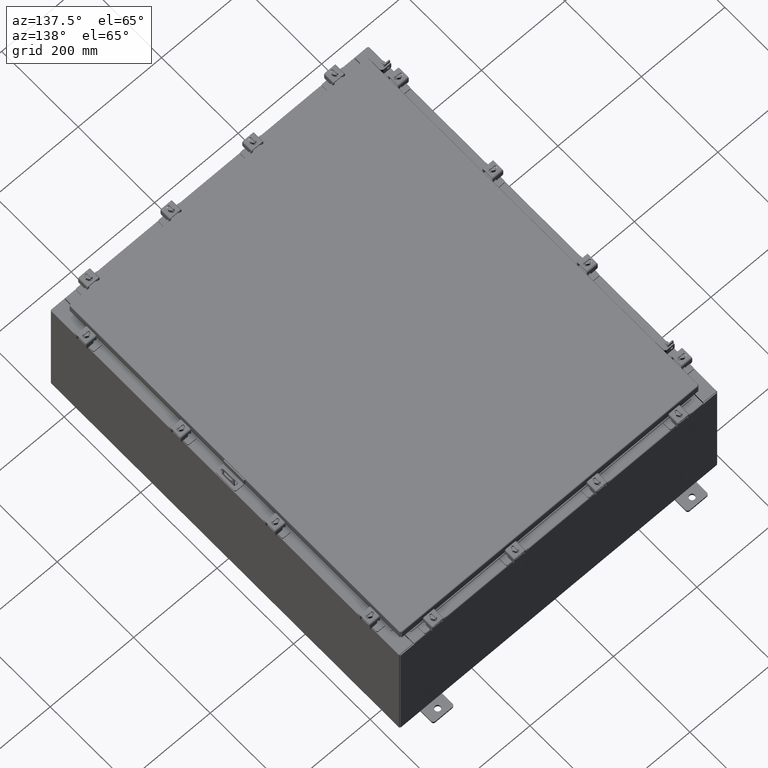
[diagram: clean part render]
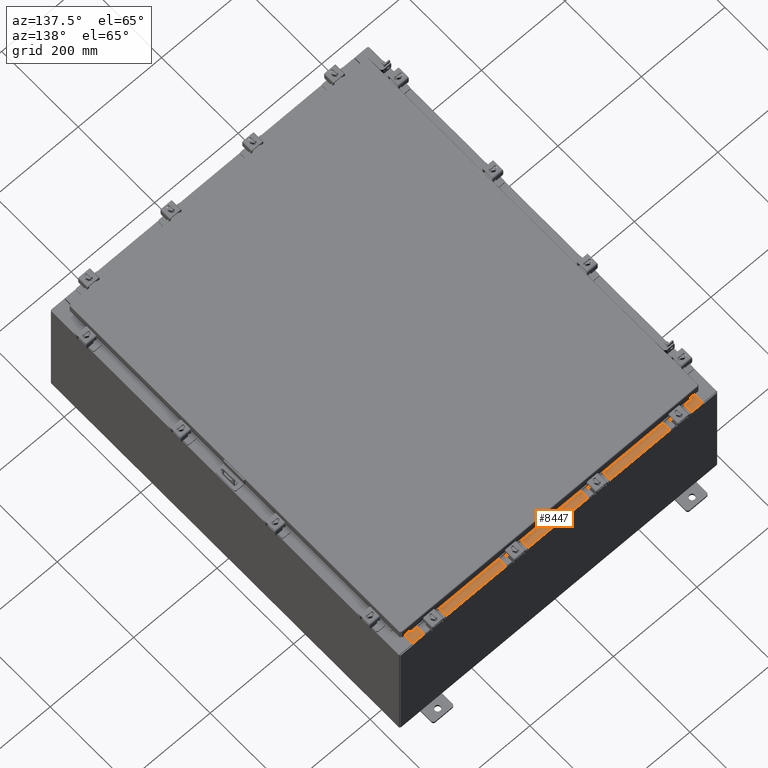
[diagram: same view with one face highlighted and labeled with its STEP entity id]
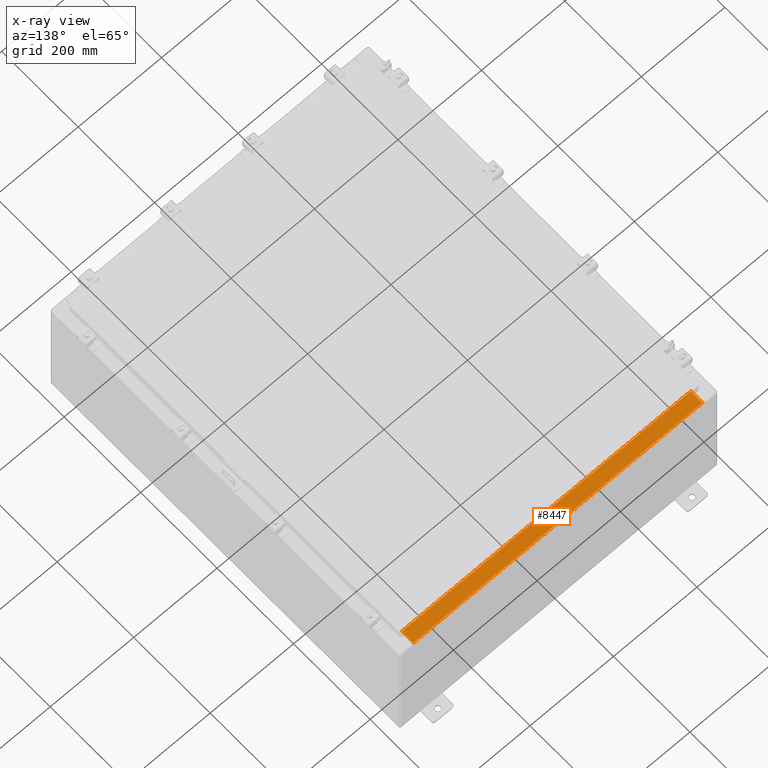
[diagram: x-ray of the same camera — body ghosted, the highlighted face saturated]
A machine part, auxiliary view. The second image highlights one B-rep face of the part: STEP entity #8447.
The next image is the same camera in x-ray: the body ghosted, the highlighted face saturated — about 0% of this face is hidden behind the body in this view.
In plain terms, the highlighted planar face has unit normal (0, 0, 1).
Its self-contained STEP definition (entity closure, byte-faithful):
#624 = LINE ( 'NONE', #19821, #8880 ) ;
#1008 = EDGE_CURVE ( 'NONE', #15607, #16236, #4623, .T. ) ;
#1214 = EDGE_LOOP ( 'NONE', ( #12238, #10512, #20701, #2145 ) ) ;
#2094 = EDGE_CURVE ( 'NONE', #15607, #7789, #3793, .T. ) ;
#2145 = ORIENTED_EDGE ( 'NONE', *, *, #2094, .T. ) ;
#2902 = DIRECTION ( 'NONE',  ( 0.0000000000000000000, 3.566381192773190000E-015, 1.000000000000000000 ) ) ;
#3520 = VECTOR ( 'NONE', #10409, 39.37007874015748100 ) ;
#3793 = LINE ( 'NONE', #21134, #8530 ) ;
#4623 = LINE ( 'NONE', #11193, #3520 ) ;
#7241 = DIRECTION ( 'NONE',  ( -1.000000000000000000, 0.0000000000000000000, 0.0000000000000000000 ) ) ;
#7789 = VERTEX_POINT ( 'NONE', #11118 ) ;
#7816 = CARTESIAN_POINT ( 'NONE',  ( -13.63719999999999800, -1.287299999999999200, 6.000000000000003600 ) ) ;
#8447 = ADVANCED_FACE ( 'NONE', ( #10875 ), #16818, .T. ) ;
#8530 = VECTOR ( 'NONE', #20928, 39.37007874015748100 ) ;
#8670 = VERTEX_POINT ( 'NONE', #7816 ) ;
#8880 = VECTOR ( 'NONE', #21552, 39.37007874015748100 ) ;
#9589 = EDGE_CURVE ( 'NONE', #16236, #8670, #9725, .T. ) ;
#9627 = CARTESIAN_POINT ( 'NONE',  ( 13.63720000000000400, -0.08769999999999937600, 5.999999999999999100 ) ) ;
#9725 = LINE ( 'NONE', #12513, #12684 ) ;
#9744 = EDGE_CURVE ( 'NONE', #8670, #7789, #624, .T. ) ;
#10409 = DIRECTION ( 'NONE',  ( -0.0000000000000000000, -1.000000000000000000, 3.566381192773190000E-015 ) ) ;
#10512 = ORIENTED_EDGE ( 'NONE', *, *, #9589, .F. ) ;
#10875 = FACE_OUTER_BOUND ( 'NONE', #1214, .T. ) ;
#11118 = CARTESIAN_POINT ( 'NONE',  ( -13.63719999999999800, -0.08769999999999972300, 5.999999999999999100 ) ) ;
#11193 = CARTESIAN_POINT ( 'NONE',  ( 13.63720000000000400, -1.300299999999999800, 6.000000000000003600 ) ) ;
#12238 = ORIENTED_EDGE ( 'NONE', *, *, #9744, .F. ) ;
#12513 = CARTESIAN_POINT ( 'NONE',  ( 13.63720000000000400, -1.287299999999999900, 6.000000000000003600 ) ) ;
#12684 = VECTOR ( 'NONE', #7241, 39.37007874015748100 ) ;
#15162 = DIRECTION ( 'NONE',  ( 0.0000000000000000000, -1.000000000000000000, 3.566381192773190000E-015 ) ) ;
#15607 = VERTEX_POINT ( 'NONE', #9627 ) ;
#16236 = VERTEX_POINT ( 'NONE', #19704 ) ;
#16818 = PLANE ( 'NONE',  #21645 ) ;
#19704 = CARTESIAN_POINT ( 'NONE',  ( 13.63720000000000400, -1.287299999999999900, 6.000000000000003600 ) ) ;
#19821 = CARTESIAN_POINT ( 'NONE',  ( -13.63719999999999800, -0.07469999999999973900, 5.999999999999999100 ) ) ;
#20306 = CARTESIAN_POINT ( 'NONE',  ( 0.0000000000000000000, 2.139269213755056400E-014, 5.999999999999999100 ) ) ;
#20701 = ORIENTED_EDGE ( 'NONE', *, *, #1008, .F. ) ;
#20928 = DIRECTION ( 'NONE',  ( -1.000000000000000000, 4.006464660875052000E-017, -1.428858021605520200E-031 ) ) ;
#21134 = CARTESIAN_POINT ( 'NONE',  ( -3.513669507588266700E-018, -0.08769999999999972300, 5.999999999999999100 ) ) ;
#21552 = DIRECTION ( 'NONE',  ( -0.0000000000000000000, 1.000000000000000000, -3.566381192773190000E-015 ) ) ;
#21645 = AXIS2_PLACEMENT_3D ( 'NONE', #20306, #2902, #15162 ) ;